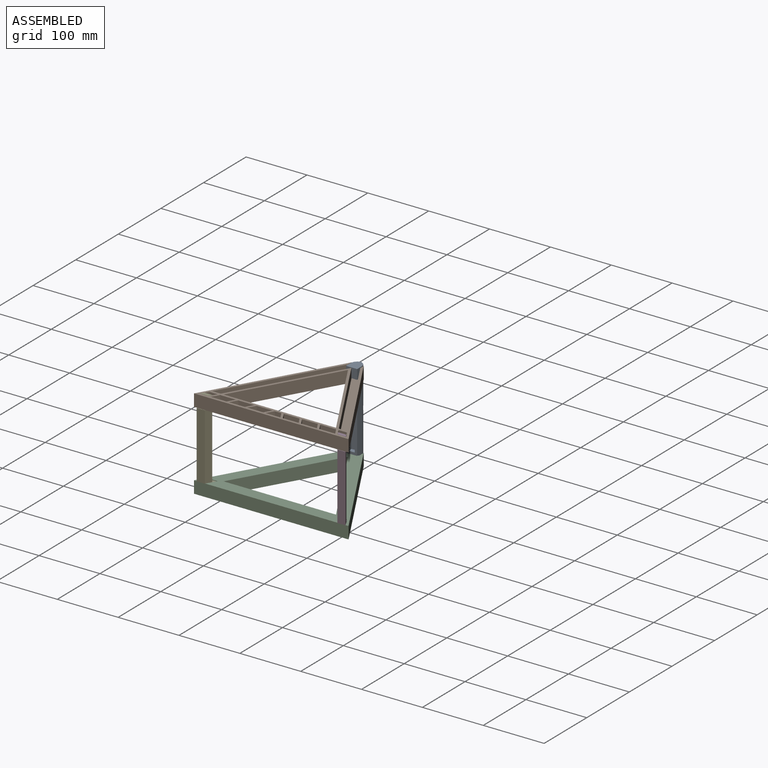
[diagram: assembled view]
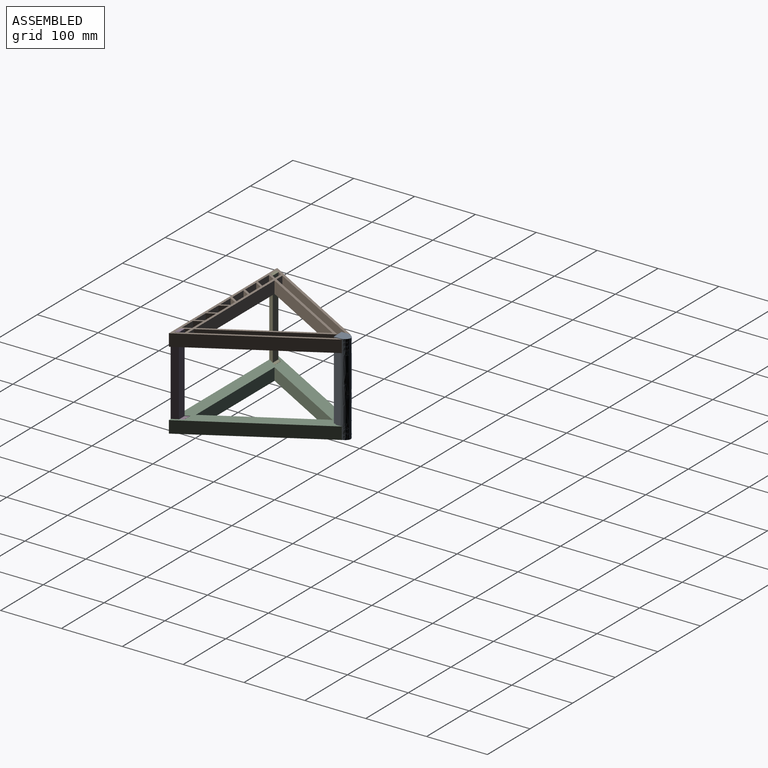
[diagram: assembled view, second angle]
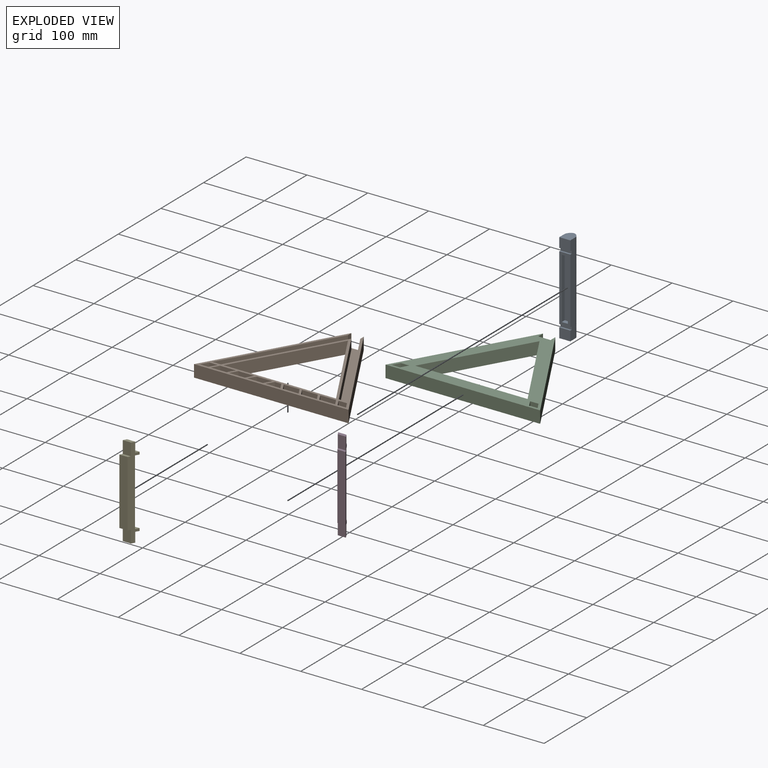
[diagram: exploded view]
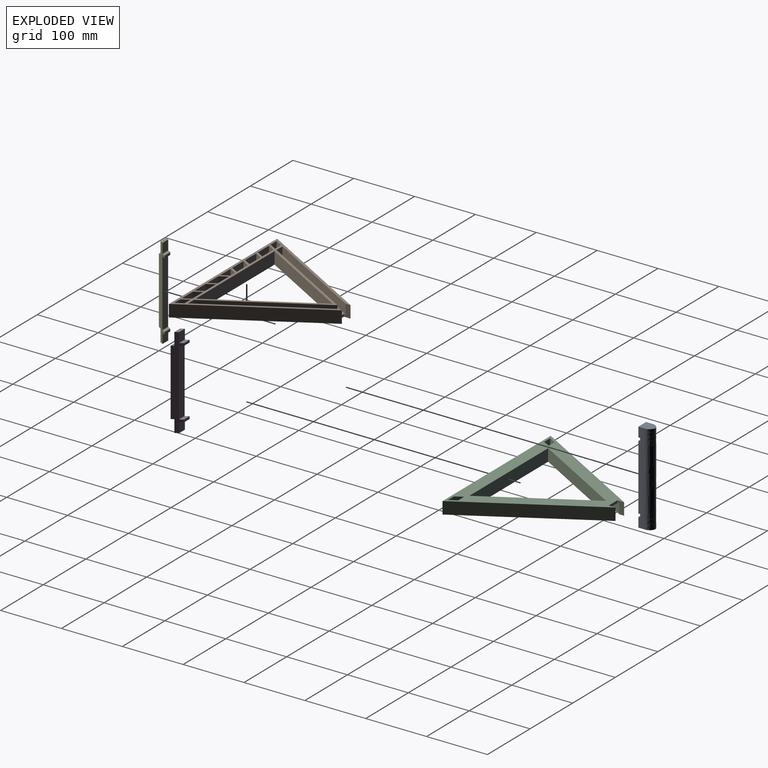
[diagram: exploded view, second angle]
ASSEMBLY  parts=5 mates=4
PART A: 20 faces, bbox 18.9x165.7x22.7 mm
  f0: plane 108x18.2mm, normal (0,0,-1), area 945.6mm2, adj f2,f4,f9,f13,f15,f16,f17,f18
  f1: plane 18.2x16mm, normal (0,0,-1), area 291.2mm2, adj f2,f3,f4,f10
  f2: plane 150x11mm, normal (1,0,0), area 1620mm2, adj f0,f1,f3,f5,f6,f7,f9,f10
  f3: plane 22.55x18.85mm, normal (0,1,0), area 346.8mm2, adj f1,f2,f4,f7,f8
  f4: plane 150x11mm, normal (-1,0,0), area 1620mm2, adj f0,f1,f3,f5,f6,f8,f9,f10
  f5: plane 22.56x18.85mm, normal (0,-1,0), area 346.8mm2, adj f2,f4,f6,f7,f8
  f6: plane 18.2x16mm, normal (0,0,-1), area 291.2mm2, adj f2,f4,f5,f12
  f7: bspline ~165x11mm, area 2291.5mm2, adj f2,f3,f5,f8
  f8: bspline ~165x11mm, area 2291.5mm2, adj f3,f4,f5,f7
  f9: plane 18.2x3mm, normal (0,1,0), area 54.6mm2, adj f0,f2,f4,f11
  f10: plane 18.2x3mm, normal (0,-1,0), area 54.6mm2, adj f1,f2,f4,f11
  f11: plane 18.2x5mm, normal (0,0,-1), area 91mm2, adj f2,f4,f9,f10
  f12: plane 18.2x3mm, normal (0,1,0), area 54.6mm2, adj f2,f4,f6,f14
  f13: plane 18.2x3mm, normal (0,-1,0), area 54.6mm2, adj f0,f2,f4,f14
  f14: plane 18.2x5mm, normal (0,0,-1), area 91mm2, adj f2,f4,f12,f13
  f15: plane 100x7mm, normal (-1,0,0), area 700mm2, adj f0,f16,f18,f19
  f16: plane 10.2x7mm, normal (0,1,0), area 71.4mm2, adj f0,f15,f17,f19
  f17: plane 100x7mm, normal (1,0,0), area 700mm2, adj f0,f16,f18,f19
  f18: plane 10.2x7mm, normal (0,-1,0), area 71.4mm2, adj f0,f15,f17,f19
  f19: plane 100x10.2mm, normal (0,0,-1), area 1020mm2, adj f15,f16,f17,f18
PART B: 61 faces, bbox 254x202.5x20 mm
  f0: plane 254.03x202.51mm, normal (0,0,-1), area 12432mm2, adj f21,f22,f27,f28,f29,f30,f31,f33
  f1: plane 32.93x12mm, normal (0,0,1), area 312mm2, adj f25,f26,f44,f60
  f2: plane 26x16mm, normal (0,-1,0), area 416mm2, adj f4,f32,f58,f59
  f3: plane 26x16mm, normal (0,1,0), area 416mm2, adj f4,f32,f58,f59
  f4: plane 32.93x12mm, normal (0,0,1), area 312mm2, adj f2,f3,f58,f59
  f5: plane 26x16mm, normal (0,-1,0), area 416mm2, adj f7,f32,f56,f57
  f6: plane 26x16mm, normal (0,1,0), area 416mm2, adj f7,f32,f56,f57
  f7: plane 32.93x12mm, normal (0,0,1), area 312mm2, adj f5,f6,f56,f57
  f8: plane 16x10.61mm, normal (0,-1,0), area 169.7mm2, adj f11,f32,f53,f55
  f9: plane 24.47x16mm, normal (0,1,0), area 391.4mm2, adj f11,f32,f53,f55
  f10: plane 32.93x12mm, normal (0,0,1), area 312mm2, adj f12,f13,f51,f54
  f11: plane 24.47x12mm, normal (0,0,1), area 210.4mm2, adj f8,f9,f53,f55
  f12: plane 26x16mm, normal (0,-1,0), area 416mm2, adj f10,f32,f51,f54
  f13: plane 26x16mm, normal (0,1,0), area 416mm2, adj f10,f32,f51,f54
  f14: plane 32.93x12mm, normal (0,0,1), area 312mm2, adj f15,f16,f49,f52
  f15: plane 26x16mm, normal (0,-1,0), area 416mm2, adj f14,f32,f49,f52
  f16: plane 26x16mm, normal (0,1,0), area 416mm2, adj f14,f32,f49,f52
  f17: plane 32.93x12mm, normal (0,0,1), area 312mm2, adj f18,f19,f43,f50
  f18: plane 26x16mm, normal (0,-1,0), area 416mm2, adj f17,f32,f43,f50
  f19: plane 26x16mm, normal (0,1,0), area 416mm2, adj f17,f32,f43,f50
  f20: plane 221.7x174.51mm, normal (0,0,1), area 4750.9mm2, adj f23,f24,f38,f39,f40,f41,f42,f46
  f21: plane 20x12mm, normal (0.87,0.5,0), area 277.1mm2, adj f0,f32,f36,f47
  f22: plane 20x12mm, normal (-0.87,-0.5,0), area 277.1mm2, adj f0,f32,f36,f47
  f23: plane 174.51x100.75mm, normal (0.87,-0.5,0), area 3224mm2, adj f20,f32,f41,f46
  f24: plane 168x97mm, normal (-0.87,0.5,0), area 3103.8mm2, adj f20,f32,f38,f46
  f25: plane 26x16mm, normal (0,-1,0), area 416mm2, adj f1,f32,f44,f60
  f26: plane 26x16mm, normal (0,1,0), area 416mm2, adj f1,f32,f44,f60
  f27: plane 20x13.86mm, normal (0,1,0), area 277.1mm2, adj f0,f29,f32,f37
  f28: plane 202.51x116.92mm, normal (-0.87,0.5,0), area 4676.7mm2, adj f0,f30,f32,f41
  f29: plane 20x12mm, normal (0.87,-0.5,0), area 277.1mm2, adj f0,f27,f32,f45
  f30: plane 254.03x20mm, normal (0,-1,0), area 5080.7mm2, adj f0,f28,f31,f32
  f31: plane 202.51x116.92mm, normal (0.87,0.5,0), area 4676.7mm2, adj f0,f30,f32,f40
  f32: plane 254.03x202.51mm, normal (0,0,1), area 5598.7mm2, adj f2,f3,f5,f6,f8,f9,f12,f13
  f33: plane 160x92.38mm, normal (0.87,-0.5,0), area 3695mm2, adj f0,f32,f34,f35
  f34: plane 184.75x20mm, normal (0,1,0), area 3695mm2, adj f0,f32,f33,f35
  f35: plane 160x92.38mm, normal (-0.87,-0.5,0), area 3695mm2, adj f0,f32,f33,f34
  f36: plane 20x13.86mm, normal (0,1,0), area 277.1mm2, adj f0,f21,f22,f32
  f37: plane 20x12mm, normal (-0.87,0.5,0), area 277.1mm2, adj f0,f27,f32,f45
  f38: plane 168x97mm, normal (0.87,0.5,0), area 3103.8mm2, adj f20,f24,f32,f48
  f39: plane 174.51x100.75mm, normal (-0.87,-0.5,0), area 3224mm2, adj f20,f32,f40,f48
  f40: plane 20x11.01mm, normal (-1,0,0), area 172mm2, adj f0,f20,f31,f32,f39,f42
  f41: plane 20x11.01mm, normal (1,0,0), area 172mm2, adj f0,f20,f23,f28,f32,f42
  f42: plane 20.2x4mm, normal (0,1,0), area 80.8mm2, adj f0,f20,f40,f41
  f43: plane 16x12mm, normal (0.87,-0.5,0), area 221.7mm2, adj f17,f18,f19,f32
  f44: plane 16x12mm, normal (-0.87,-0.5,0), area 221.7mm2, adj f1,f25,f26,f32
  f45: plane 20x13.86mm, normal (0,-1,0), area 277.1mm2, adj f0,f29,f32,f37
  f46: plane 16x13.86mm, normal (0,1,0), area 221.7mm2, adj f20,f23,f24,f32
  f47: plane 20x13.86mm, normal (0,-1,0), area 277.1mm2, adj f0,f21,f22,f32
  f48: plane 16x13.86mm, normal (0,1,0), area 221.7mm2, adj f20,f32,f38,f39
  f49: plane 16x12mm, normal (0.87,-0.5,0), area 221.7mm2, adj f14,f15,f16,f32
  f50: plane 16x12mm, normal (-0.87,0.5,0), area 221.7mm2, adj f17,f18,f19,f32
  f51: plane 16x12mm, normal (0.87,-0.5,0), area 221.7mm2, adj f10,f12,f13,f32
  f52: plane 16x12mm, normal (-0.87,0.5,0), area 221.7mm2, adj f14,f15,f16,f32
  f53: plane 16x12mm, normal (0.87,-0.5,0), area 221.7mm2, adj f8,f9,f11,f32
  f54: plane 16x12mm, normal (-0.87,0.5,0), area 221.7mm2, adj f10,f12,f13,f32
  f55: plane 16x12mm, normal (-0.87,-0.5,0), area 221.7mm2, adj f8,f9,f11,f32
  f56: plane 16x12mm, normal (0.87,0.5,0), area 221.7mm2, adj f5,f6,f7,f32
  f57: plane 16x12mm, normal (-0.87,-0.5,0), area 221.7mm2, adj f5,f6,f7,f32
  f58: plane 16x12mm, normal (0.87,0.5,0), area 221.7mm2, adj f2,f3,f4,f32
  f59: plane 16x12mm, normal (-0.87,-0.5,0), area 221.7mm2, adj f2,f3,f4,f32
  f60: plane 16x12mm, normal (0.87,0.5,0), area 221.7mm2, adj f1,f25,f26,f32
PART C: same geometry as B
PART D: 18 faces, bbox 15.7x150x27.1 mm
  f0: plane 11.65x6.73mm, normal (-0.87,0,0.5), area 55.2mm2, adj f1,f2,f14,f15
  f1: plane 150x15.45mm, normal (-0.87,0,-0.5), area 1519.1mm2, adj f0,f3,f4,f5,f6,f7,f8,f9
  f2: plane 150x15.45mm, normal (0.87,0,0.5), area 1519.1mm2, adj f0,f3,f4,f5,f6,f7,f8,f9
  f3: plane 11.65x6.73mm, normal (-0.87,0,0.5), area 55.2mm2, adj f1,f2,f12,f16
  f4: plane 109x11.65mm, normal (0.87,0,-0.5), area 1466.7mm2, adj f1,f2,f7,f9
  f5: plane 17.23x9.95mm, normal (0,-1,0), area 75mm2, adj f1,f2,f8,f13
  f6: plane 17.23x9.95mm, normal (0,1,0), area 75mm2, adj f1,f2,f10,f11
  f7: plane 15.95x9.21mm, normal (0,-1,0), area 57.9mm2, adj f1,f2,f4,f8
  f8: plane 20.5x11.65mm, normal (0.87,0,-0.5), area 275.8mm2, adj f1,f2,f5,f7
  f9: plane 15.95x9.21mm, normal (0,1,0), area 57.9mm2, adj f1,f2,f4,f10
  f10: plane 20.5x11.65mm, normal (0.87,0,-0.5), area 275.8mm2, adj f1,f2,f6,f9
  f11: plane 16.2x11.65mm, normal (-0.87,0,0.5), area 218mm2, adj f1,f2,f6,f12
  f12: plane 17.23x9.95mm, normal (0,1,0), area 75mm2, adj f1,f2,f3,f11
  f13: plane 16.2x11.65mm, normal (-0.87,0,0.5), area 218mm2, adj f1,f2,f5,f14
  f14: plane 17.23x9.95mm, normal (0,-1,0), area 75mm2, adj f0,f1,f2,f13
  f15: plane 17.55x10.13mm, normal (0,1,0), area 79.4mm2, adj f0,f1,f2,f17
  f16: plane 17.55x10.13mm, normal (0,-1,0), area 79.4mm2, adj f1,f2,f3,f17
  f17: plane 109.4x11.65mm, normal (-0.87,0,0.5), area 1472.1mm2, adj f1,f2,f15,f16
PART E: same geometry as D
PLACE A rot(axis=(-1,0,0),90deg) t=(-7.53,158.63,-88.94)mm
PLACE B t=(-7.53,43.47,-34.44)mm
PLACE C rot(axis=(0,1,0),180deg) t=(-7.53,43.47,-143.44)mm
PLACE D rot(axis=(0.38,-0.65,-0.65),138.6deg) t=(102.56,-20.54,-14.19)mm
PLACE E rot(axis=(-0.77,0.45,-0.45),104.5deg) t=(-117.61,-20.54,-164.19)mm
MATE fastened A.f14 <-> B.f42  axis (0,-1,0) through (-7.53,161.63,-32.44)mm
MATE fastened D.f10 <-> B.f36  axis (0,-1,0) through (105.64,-25.87,-24.44)mm
MATE fastened C.f42 <-> A.f11  axis (0,1,0) through (-7.53,161.63,-145.44)mm
MATE fastened E.f8 <-> B.f27  axis (0,-1,0) through (-120.69,-25.87,-24.44)mm
